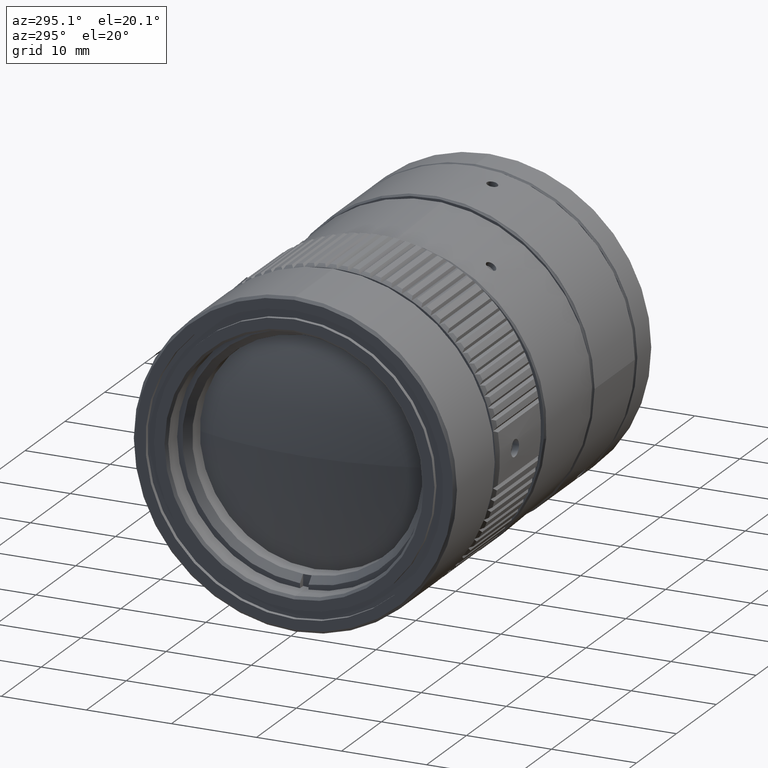
[diagram: clean part render]
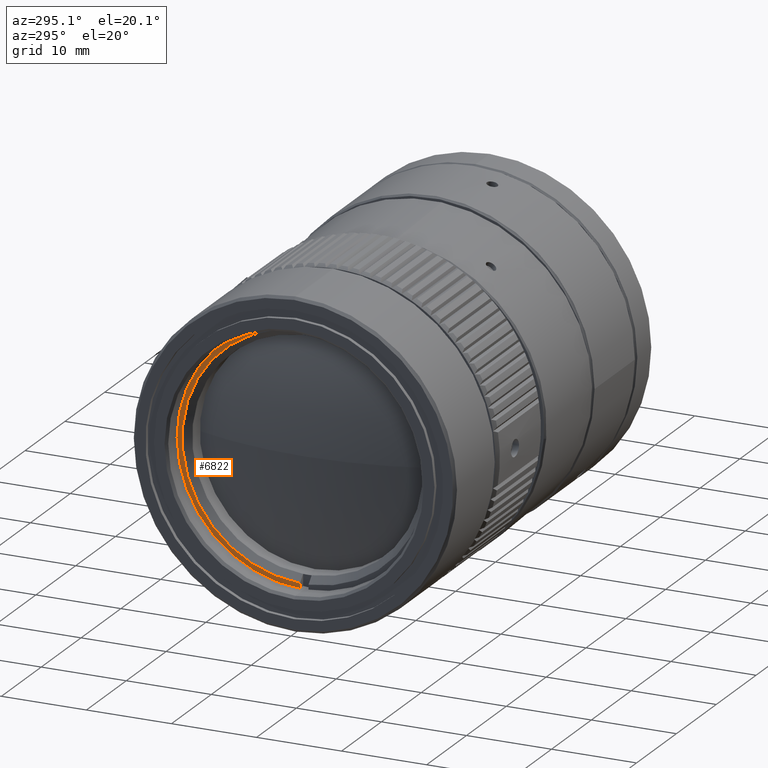
[diagram: same view with one face highlighted and labeled with its STEP entity id]
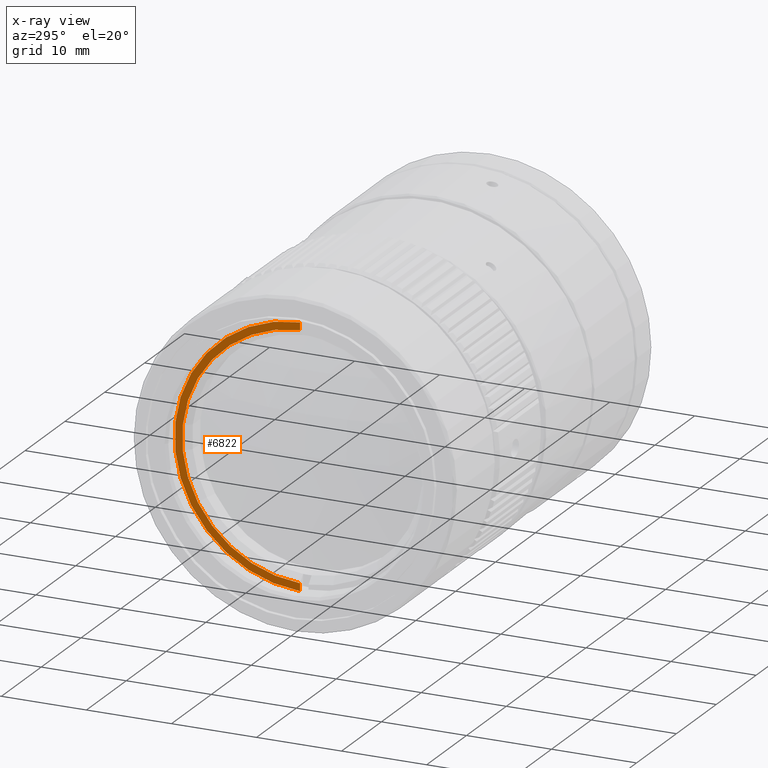
[diagram: x-ray of the same camera — body ghosted, the highlighted face saturated]
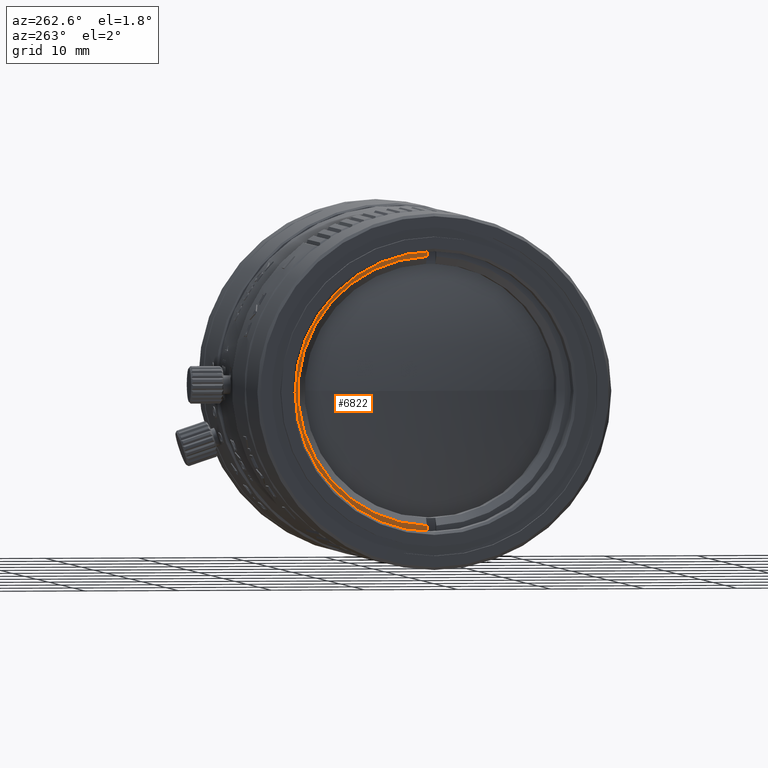
[diagram: same view with one face highlighted and labeled with its STEP entity id]
A machine part, auxiliary view. The second image highlights one B-rep face of the part: STEP entity #6822.
The next image is the same camera in x-ray: the body ghosted, the highlighted face saturated — about 0% of this face is hidden behind the body in this view.
A second angle (auxiliary view) of the same face is appended — the face is thin or edge-on in the first view.
In plain terms, the highlighted planar face has unit normal (1, 0, 0).
Its self-contained STEP definition (entity closure, byte-faithful):
#1140 = DIRECTION ( 'NONE',  ( 1.000000000000000000, 0.000000000000000000, 0.000000000000000000 ) ) ;
#4078 = DIRECTION ( 'NONE',  ( 0.000000000000000000, 0.000000000000000000, -1.000000000000000000 ) ) ;
#4181 = EDGE_CURVE ( 'NONE', #6539, #37848, #36069, .T. ) ;
#4763 = CARTESIAN_POINT ( 'NONE',  ( -19.24031507612881953, 19.30004786564036223, -34.14180107467559111 ) ) ;
#6539 = VERTEX_POINT ( 'NONE', #46566 ) ;
#6822 = ADVANCED_FACE ( 'NONE', ( #36445 ), #14026, .F. ) ;
#7732 = LINE ( 'NONE', #28773, #39155 ) ;
#7807 = CARTESIAN_POINT ( 'NONE',  ( -19.24031507612763647, 18.80004786563999986, -18.90000000000000213 ) ) ;
#9344 = AXIS2_PLACEMENT_3D ( 'NONE', #39833, #1140, #53519 ) ;
#9978 = EDGE_LOOP ( 'NONE', ( #36970, #15852, #17508, #11587 ) ) ;
#10492 = VERTEX_POINT ( 'NONE', #4763 ) ;
#11587 = ORIENTED_EDGE ( 'NONE', *, *, #26290, .F. ) ;
#12715 = DIRECTION ( 'NONE',  ( 1.000000000000000000, 1.208866592329848107E-16, -0.000000000000000000 ) ) ;
#13257 = CARTESIAN_POINT ( 'NONE',  ( -19.24031507613049996, 19.30004786564036579, -4.558714142260313906 ) ) ;
#13362 = VECTOR ( 'NONE', #33320, 1000.000000000000000 ) ;
#14026 = PLANE ( 'NONE',  #9344 ) ;
#15852 = ORIENTED_EDGE ( 'NONE', *, *, #4181, .T. ) ;
#17508 = ORIENTED_EDGE ( 'NONE', *, *, #41251, .F. ) ;
#21755 = AXIS2_PLACEMENT_3D ( 'NONE', #32126, #12715, #46380 ) ;
#23988 = EDGE_CURVE ( 'NONE', #6539, #10492, #28841, .T. ) ;
#26290 = EDGE_CURVE ( 'NONE', #10492, #30268, #36666, .T. ) ;
#28773 = CARTESIAN_POINT ( 'NONE',  ( -19.24031507612999903, 19.30004786564073171, -3.048526882337000643 ) ) ;
#28841 = LINE ( 'NONE', #54592, #13362 ) ;
#30268 = VERTEX_POINT ( 'NONE', #30946 ) ;
#30946 = CARTESIAN_POINT ( 'NONE',  ( -19.24031507612881953, 19.30004786564054697, -3.658198925325389705 ) ) ;
#32126 = CARTESIAN_POINT ( 'NONE',  ( -19.24031507613099734, 18.80004786563999986, -18.90000000000000213 ) ) ;
#32239 = DIRECTION ( 'NONE',  ( 1.000000000000000000, -0.000000000000000000, 0.000000000000000000 ) ) ;
#33320 = DIRECTION ( 'NONE',  ( 0.000000000000000000, 0.000000000000000000, -1.000000000000000000 ) ) ;
#36069 = CIRCLE ( 'NONE', #21755, 14.34999930499716569 ) ;
#36445 = FACE_OUTER_BOUND ( 'NONE', #9978, .T. ) ;
#36666 = CIRCLE ( 'NONE', #54537, 15.24999999999799805 ) ;
#36970 = ORIENTED_EDGE ( 'NONE', *, *, #23988, .F. ) ;
#37848 = VERTEX_POINT ( 'NONE', #13257 ) ;
#39155 = VECTOR ( 'NONE', #4078, 1000.000000000000000 ) ;
#39833 = CARTESIAN_POINT ( 'NONE',  ( -19.24031507612999903, 34.66004786564000284, -3.048526882337000643 ) ) ;
#41251 = EDGE_CURVE ( 'NONE', #30268, #37848, #7732, .T. ) ;
#45938 = DIRECTION ( 'NONE',  ( 0.000000000000000000, 0.000000000000000000, -1.000000000000000000 ) ) ;
#46380 = DIRECTION ( 'NONE',  ( 0.000000000000000000, -1.000000000000000000, 9.670932738639041238E-16 ) ) ;
#46566 = CARTESIAN_POINT ( 'NONE',  ( -19.24031507613089431, 19.30004786564024144, -33.24128585774009537 ) ) ;
#53519 = DIRECTION ( 'NONE',  ( 0.000000000000000000, 0.000000000000000000, -1.000000000000000000 ) ) ;
#54537 = AXIS2_PLACEMENT_3D ( 'NONE', #7807, #32239, #45938 ) ;
#54592 = CARTESIAN_POINT ( 'NONE',  ( -19.24031507612999903, 19.30004786564048302, -3.048526882337000643 ) ) ;